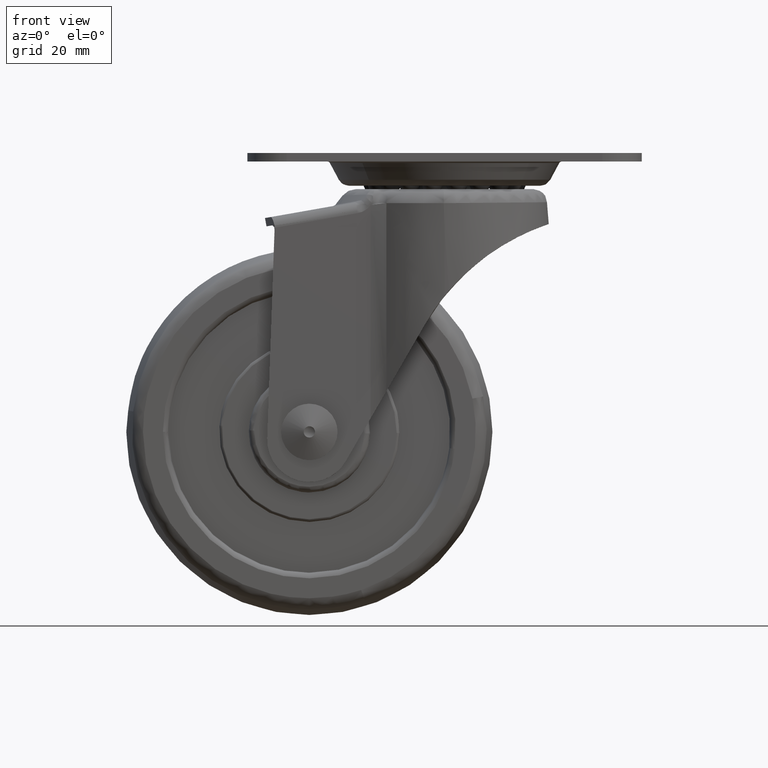
[diagram: clean part render]
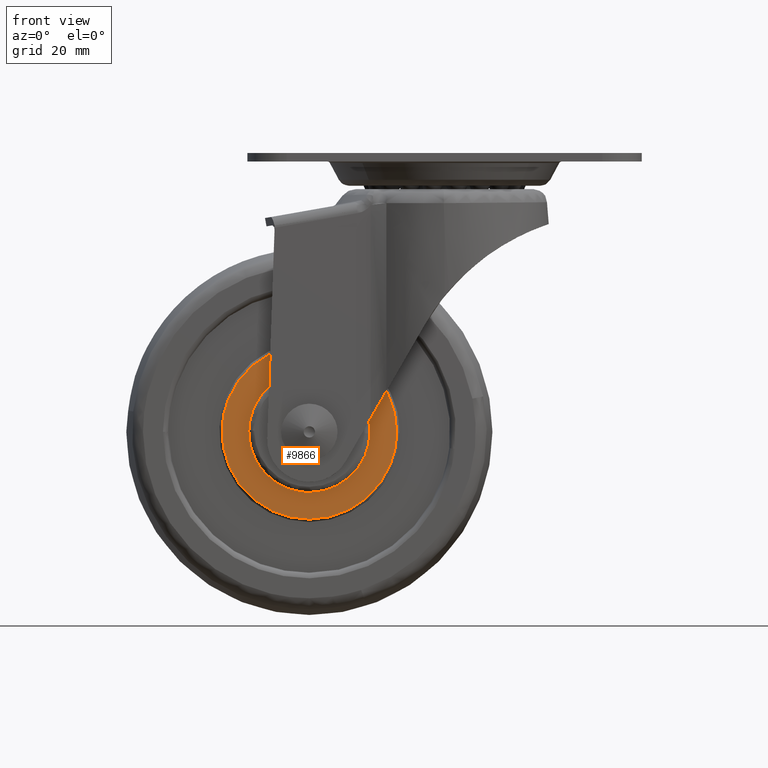
[diagram: same view with one face highlighted and labeled with its STEP entity id]
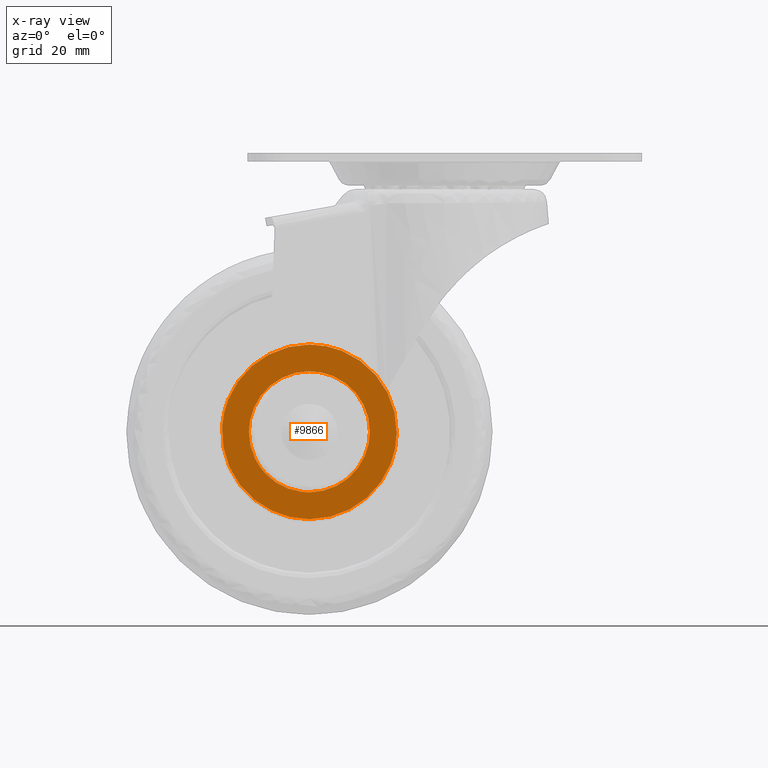
[diagram: x-ray of the same camera — body ghosted, the highlighted face saturated]
A machine part, front view. The second image highlights one B-rep face of the part: STEP entity #9866.
The next image is the same camera in x-ray: the body ghosted, the highlighted face saturated — about 0% of this face is hidden behind the body in this view.
In plain terms, the highlighted face is a freeform B-spline surface patch.
Its self-contained STEP definition (entity closure, byte-faithful):
#7401=CARTESIAN_POINT('',(-25.345687081091690,-9.999999999999425,-58.665436766699472));
#7402=VERTEX_POINT('',#7401);
#7403=CARTESIAN_POINT('',(-24.0,-9.999999999999409,-58.749996000000003));
#7404=VERTEX_POINT('',#7403);
#7405=CARTESIAN_POINT('',(-25.345687081091690,-9.999999999999425,-58.665436766699472));
#7406=CARTESIAN_POINT('',(-24.899483530294209,-9.999999999999435,-58.721743462729847));
#7407=CARTESIAN_POINT('',(-24.449742178409920,-9.999999999999417,-58.750006549291790));
#7408=CARTESIAN_POINT('',(-24.0,-9.999999999999409,-58.749996000000003));
#7409=B_SPLINE_CURVE_WITH_KNOTS('',3,(#7405,#7406,#7407,#7408),.UNSPECIFIED.,.F.,.U.,(4,4),(4.932565E-010,1.349230059444168),.UNSPECIFIED.);
#7410=EDGE_CURVE('',#7402,#7404,#7409,.T.);
#7412=CARTESIAN_POINT('',(-13.250000000000060,-9.999999999999409,-47.999994871958528));
#7413=VERTEX_POINT('',#7412);
#7414=CARTESIAN_POINT('',(-24.0,-9.999999999999409,-58.749996000000003));
#7415=CARTESIAN_POINT('',(-23.076507079407151,-9.999999999999396,-58.750307643388453));
#7416=CARTESIAN_POINT('',(-21.581554787462849,-9.999999999999433,-58.556064335460469));
#7417=CARTESIAN_POINT('',(-19.666757926718059,-9.999999999999405,-57.884129902230093));
#7418=CARTESIAN_POINT('',(-18.111274967197240,-9.999999999999405,-57.052694367180862));
#7419=CARTESIAN_POINT('',(-16.467050905024909,-9.999999999999417,-55.785981214090008));
#7420=CARTESIAN_POINT('',(-15.012299183664510,-9.999999999999410,-54.056977035462559));
#7421=CARTESIAN_POINT('',(-14.076347181420489,-9.999999999999426,-52.252713030261532));
#7422=CARTESIAN_POINT('',(-13.426811120237099,-9.999999999999353,-50.286508496941153));
#7423=CARTESIAN_POINT('',(-13.249708807168370,-9.999999999999456,-48.923489518826749));
#7424=CARTESIAN_POINT('',(-13.250000000000060,-9.999999999999409,-47.999994871958528));
#7425=B_SPLINE_CURVE_WITH_KNOTS('',3,(#7414,#7415,#7416,#7417,#7418,#7419,#7420,#7421,#7422,#7423,#7424),.UNSPECIFIED.,.F.,.U.,(4,1,1,1,1,1,1,1,4),(0.000000076363438,2.770382093069330,4.485389254515685,6.068487298615514,8.047356925754984,10.685757396142920,12.796550307057780,14.115790204067570,16.886167101695889),.UNSPECIFIED.);
#7426=EDGE_CURVE('',#7404,#7413,#7425,.T.);
#7428=CARTESIAN_POINT('',(-24.0,-9.999999999999409,-37.249996000000010));
#7429=VERTEX_POINT('',#7428);
#7430=CARTESIAN_POINT('',(-13.250000000000060,-9.999999999999409,-47.999994871958528));
#7431=CARTESIAN_POINT('',(-13.249978437201131,-9.999999999999409,-47.472313172408377));
#7432=CARTESIAN_POINT('',(-13.331092179189280,-9.999999999999414,-46.372969825817641));
#7433=CARTESIAN_POINT('',(-13.738122916504279,-9.999999999999409,-44.610670861301799));
#7434=CARTESIAN_POINT('',(-14.399698788919020,-9.999999999999421,-43.067413948879697));
#7435=CARTESIAN_POINT('',(-15.426315229132690,-9.999999999999369,-41.423856576712303));
#7436=CARTESIAN_POINT('',(-16.607469596456099,-9.999999999999510,-40.104409292303153));
#7437=CARTESIAN_POINT('',(-18.046366702387179,-9.999999999999309,-39.009924649573470));
#7438=CARTESIAN_POINT('',(-19.656273332653889,-9.999999999999583,-38.097588401541280));
#7439=CARTESIAN_POINT('',(-21.625401265155411,-9.999999999999481,-37.420296398489043));
#7440=CARTESIAN_POINT('',(-23.252447106151848,-9.999999999999275,-37.249911212838953));
#7441=CARTESIAN_POINT('',(-24.0,-9.999999999999409,-37.249996000000010));
#7442=B_SPLINE_CURVE_WITH_KNOTS('',3,(#7430,#7431,#7432,#7433,#7434,#7435,#7436,#7437,#7438,#7439,#7440,#7441),.UNSPECIFIED.,.F.,.U.,(4,1,1,1,1,1,1,1,1,4),(0.000000076739425,1.583052907055929,3.298068967626113,5.408851894724187,6.596180970129247,9.102656617720669,10.685756591826861,12.005002068928260,14.643492190751960,16.886165830122369),.UNSPECIFIED.);
#7443=EDGE_CURVE('',#7413,#7429,#7442,.T.);
#7445=CARTESIAN_POINT('',(-34.749999999999943,-9.999999999999409,-47.999997128041642));
#7446=VERTEX_POINT('',#7445);
#7447=CARTESIAN_POINT('',(-24.0,-9.999999999999409,-37.249996000000010));
#7448=CARTESIAN_POINT('',(-24.527676931425500,-9.999999999999410,-37.249989778929788));
#7449=CARTESIAN_POINT('',(-25.802948525171232,-9.999999999999423,-37.343982997047917));
#7450=CARTESIAN_POINT('',(-27.558632467611648,-9.999999999999403,-37.795215598932820));
#7451=CARTESIAN_POINT('',(-29.202256721171889,-9.999999999999416,-38.548153228392742));
#7452=CARTESIAN_POINT('',(-30.532805176657760,-9.999999999999410,-39.413782090673060));
#7453=CARTESIAN_POINT('',(-31.920241382817508,-9.999999999999414,-40.640444010322398));
#7454=CARTESIAN_POINT('',(-33.117907094800152,-9.999999999999407,-42.175076159777902));
#7455=CARTESIAN_POINT('',(-33.951250322820272,-9.999999999999366,-43.830963904509382));
#7456=CARTESIAN_POINT('',(-34.573214360745112,-9.999999999999577,-45.713473018839423));
#7457=CARTESIAN_POINT('',(-34.750280592266812,-9.999999999999204,-47.076506491278323));
#7458=CARTESIAN_POINT('',(-34.749999999999943,-9.999999999999409,-47.999997128041642));
#7459=B_SPLINE_CURVE_WITH_KNOTS('',3,(#7447,#7448,#7449,#7450,#7451,#7452,#7453,#7454,#7455,#7456,#7457,#7458),.UNSPECIFIED.,.F.,.U.,(4,1,1,1,1,1,1,1,1,4),(0.000000076386144,1.583053026046011,3.825768816669708,5.408852301568549,6.991961150350985,8.574985377165913,10.949601800449820,12.796550307062180,14.115790204070921,16.886167101695872),.UNSPECIFIED.);
#7460=EDGE_CURVE('',#7429,#7446,#7459,.T.);
#7462=CARTESIAN_POINT('',(-31.797774659480151,-9.999999999999417,-55.399807917534353));
#7463=VERTEX_POINT('',#7462);
#7464=CARTESIAN_POINT('',(-34.749999999999943,-9.999999999999409,-47.999997128041642));
#7465=CARTESIAN_POINT('',(-34.750097170826741,-9.999999999999417,-48.722645526097487));
#7466=CARTESIAN_POINT('',(-34.625198331571077,-9.999999999999417,-49.955347199200887));
#7467=CARTESIAN_POINT('',(-34.085541816589632,-9.999999999999407,-51.884257252892652));
#7468=CARTESIAN_POINT('',(-33.210129914325023,-9.999999999999439,-53.692811459734230));
#7469=CARTESIAN_POINT('',(-32.295267601916990,-9.999999999999368,-54.875674881467063));
#7470=CARTESIAN_POINT('',(-31.797774659480151,-9.999999999999417,-55.399807917534353));
#7471=B_SPLINE_CURVE_WITH_KNOTS('',3,(#7464,#7465,#7466,#7467,#7468,#7469,#7470),.UNSPECIFIED.,.F.,.U.,(4,1,1,1,4),(0.000000021724915,2.167937988898442,3.698264158702001,5.993704832738564,8.161642795230979),.UNSPECIFIED.);
#7472=EDGE_CURVE('',#7446,#7463,#7471,.T.);
#7574=CARTESIAN_POINT('',(-31.797774659480151,-9.999999999999417,-55.399807917534353));
#7575=CARTESIAN_POINT('',(-31.163331481438409,-9.999999999999423,-56.068714699672618));
#7576=CARTESIAN_POINT('',(-29.841155240644529,-9.999999999999428,-57.143877735129102));
#7577=CARTESIAN_POINT('',(-27.611573298680948,-9.999999999999417,-58.212856827617813));
#7578=CARTESIAN_POINT('',(-26.107920692220372,-9.999999999999455,-58.569372975020833));
#7579=CARTESIAN_POINT('',(-25.345687081091690,-9.999999999999425,-58.665436766699472));
#7580=B_SPLINE_CURVE_WITH_KNOTS('',3,(#7574,#7575,#7576,#7577,#7578,#7579),.UNSPECIFIED.,.F.,.U.,(4,1,1,4),(0.000000022254466,2.765728042767478,5.070500284729574,7.375273367297040),.UNSPECIFIED.);
#7581=EDGE_CURVE('',#7463,#7402,#7580,.T.);
#8199=CARTESIAN_POINT('',(-39.462267991132109,-9.999999999999346,-46.919130596555163));
#8200=VERTEX_POINT('',#8199);
#8201=CARTESIAN_POINT('',(-24.0,-9.999999999999350,-63.499996000000003));
#8202=VERTEX_POINT('',#8201);
#8203=CARTESIAN_POINT('',(-39.462267991132109,-9.999999999999346,-46.919130596555163));
#8204=CARTESIAN_POINT('',(-39.510771219180143,-9.999999999999352,-47.612752791936288));
#8205=CARTESIAN_POINT('',(-39.514689903918288,-9.999999999999339,-49.172491612812713));
#8206=CARTESIAN_POINT('',(-39.200906393823793,-9.999999999999353,-51.275651007328477));
#8207=CARTESIAN_POINT('',(-38.565009528451270,-9.999999999999348,-53.439041300771592));
#8208=CARTESIAN_POINT('',(-37.765042139955902,-9.999999999999353,-55.228147570551222));
#8209=CARTESIAN_POINT('',(-36.664104429903681,-9.999999999999398,-57.003614702875161));
#8210=CARTESIAN_POINT('',(-35.541753720014327,-9.999999999999192,-58.400624711562592));
#8211=CARTESIAN_POINT('',(-34.097522627406107,-9.999999999999409,-59.816369835596731));
#8212=CARTESIAN_POINT('',(-32.296125658398552,-9.999999999999320,-61.178115960227359));
#8213=CARTESIAN_POINT('',(-29.908440397225771,-9.999999999999254,-62.423192807881577));
#8214=CARTESIAN_POINT('',(-27.079235520027979,-9.999999999999458,-63.292066909258452));
#8215=CARTESIAN_POINT('',(-25.059550327152198,-9.999999999999320,-63.500159308333721));
#8216=CARTESIAN_POINT('',(-24.0,-9.999999999999350,-63.499996000000003));
#8217=B_SPLINE_CURVE_WITH_KNOTS('',3,(#8203,#8204,#8205,#8206,#8207,#8208,#8209,#8210,#8211,#8212,#8213,#8214,#8215,#8216),.UNSPECIFIED.,.F.,.U.,(4,1,1,1,1,1,1,1,1,1,1,4),(0.000000092992526,2.085955917955531,4.668626825926197,6.357283434883541,8.840617254100547,10.529268201373389,12.615283982888011,14.204521881646700,16.588520429090721,19.369846203097861,22.250516868685139,25.429129907070891),.UNSPECIFIED.);
#8218=EDGE_CURVE('',#8200,#8202,#8217,.T.);
#8267=CARTESIAN_POINT('',(-8.501223786436007,-9.999999999999350,-48.194769619000013));
#8268=VERTEX_POINT('',#8267);
#8278=CARTESIAN_POINT('',(-24.0,-9.999999999999350,-63.499996000000003));
#8279=CARTESIAN_POINT('',(-22.930734648478960,-9.999999999999346,-63.500175937567583));
#8280=CARTESIAN_POINT('',(-21.389829908044149,-9.999999999999362,-63.339872816542950));
#8281=CARTESIAN_POINT('',(-19.042664887305211,-9.999999999999373,-62.734046539741932));
#8282=CARTESIAN_POINT('',(-17.227890208317032,-9.999999999999343,-62.001886594401377));
#8283=CARTESIAN_POINT('',(-15.294204485009111,-9.999999999999394,-60.877918095457737));
#8284=CARTESIAN_POINT('',(-13.521962831651500,-9.999999999999290,-59.509926815778151));
#8285=CARTESIAN_POINT('',(-11.683028649418670,-9.999999999999409,-57.556458325751422));
#8286=CARTESIAN_POINT('',(-10.234350224925290,-9.999999999999410,-55.293859202061029));
#8287=CARTESIAN_POINT('',(-9.370827103806326,-9.999999999999297,-53.228256885239247));
#8288=CARTESIAN_POINT('',(-8.717475376668819,-9.999999999999636,-50.959664384664201));
#8289=CARTESIAN_POINT('',(-8.515589335060305,-9.999999999998622,-49.358307797325573));
#8290=CARTESIAN_POINT('',(-8.501223786436007,-9.999999999999350,-48.194769619000013));
#8291=B_SPLINE_CURVE_WITH_KNOTS('',3,(#8278,#8279,#8280,#8281,#8282,#8283,#8284,#8285,#8286,#8287,#8288,#8289,#8290),.UNSPECIFIED.,.F.,.U.,(4,1,1,1,1,1,1,1,1,1,4),(0.000000082020389,3.207747775022014,4.622952125097463,7.264652594520676,9.057253064870126,11.321556987517059,13.963191126610480,17.076643299175590,19.340951692642371,20.661802222366479,24.152601618442539),.UNSPECIFIED.);
#8292=EDGE_CURVE('',#8202,#8268,#8291,.T.);
#8320=CARTESIAN_POINT('',(-24.0,-9.999999999999350,-32.499996000000003));
#8321=VERTEX_POINT('',#8320);
#8322=CARTESIAN_POINT('',(-24.0,-9.999999999999350,-32.499996000000003));
#8323=CARTESIAN_POINT('',(-25.332970299254288,-9.999999999999339,-32.499578694115321));
#8324=CARTESIAN_POINT('',(-27.392716131957911,-9.999999999999343,-32.767445356723563));
#8325=CARTESIAN_POINT('',(-30.037378906839230,-9.999999999999362,-33.668533949015249));
#8326=CARTESIAN_POINT('',(-32.096151326324751,-9.999999999999332,-34.711846614354663));
#8327=CARTESIAN_POINT('',(-33.776540682431822,-9.999999999999396,-35.915352236845443));
#8328=CARTESIAN_POINT('',(-35.284715432585472,-9.999999999999305,-37.321850532592940));
#8329=CARTESIAN_POINT('',(-36.777091951128583,-9.999999999999281,-39.082507867058041));
#8330=CARTESIAN_POINT('',(-38.125620101589789,-9.999999999999412,-41.399340243211583));
#8331=CARTESIAN_POINT('',(-39.097235414742613,-9.999999999999226,-44.150866229076577));
#8332=CARTESIAN_POINT('',(-39.394780476912821,-9.999999999999407,-45.952078527487409));
#8333=CARTESIAN_POINT('',(-39.462267991132109,-9.999999999999346,-46.919130596555163));
#8334=B_SPLINE_CURVE_WITH_KNOTS('',3,(#8322,#8323,#8324,#8325,#8326,#8327,#8328,#8329,#8330,#8331,#8332,#8333),.UNSPECIFIED.,.F.,.U.,(4,1,1,1,1,1,1,1,1,4),(0.000000012941975,3.998782130162333,6.179963453667746,8.361125869397654,10.905819504845860,12.359918072275590,14.541072464584269,17.812830258845850,20.357527149113690,23.265733070899081),.UNSPECIFIED.);
#8335=EDGE_CURVE('',#8321,#8200,#8334,.T.);
#8337=CARTESIAN_POINT('',(-8.501223786436007,-9.999999999999350,-48.194769619000013));
#8338=CARTESIAN_POINT('',(-8.489904836002587,-9.999999999999339,-47.300081787798192));
#8339=CARTESIAN_POINT('',(-8.615739587717201,-9.999999999999384,-45.604731390427943));
#8340=CARTESIAN_POINT('',(-9.174751649793397,-9.999999999999382,-43.299736929355603));
#8341=CARTESIAN_POINT('',(-9.947210975287709,-9.999999999999263,-41.366837838566639));
#8342=CARTESIAN_POINT('',(-10.951856878117971,-9.999999999999499,-39.544715692537338));
#8343=CARTESIAN_POINT('',(-12.502023196837850,-9.999999999999281,-37.462108616076328));
#8344=CARTESIAN_POINT('',(-14.498855648447220,-9.999999999999504,-35.642022689438960));
#8345=CARTESIAN_POINT('',(-16.511417997457581,-9.999999999999114,-34.389976058245900));
#8346=CARTESIAN_POINT('',(-18.535255631747809,-9.999999999999419,-33.431468628256930));
#8347=CARTESIAN_POINT('',(-20.964211434540939,-9.999999999999393,-32.696687996116687));
#8348=CARTESIAN_POINT('',(-23.009368575137788,-9.999999999999231,-32.499887153210757));
#8349=CARTESIAN_POINT('',(-24.0,-9.999999999999350,-32.499996000000003));
#8350=B_SPLINE_CURVE_WITH_KNOTS('',3,(#8337,#8338,#8339,#8340,#8341,#8342,#8343,#8344,#8345,#8346,#8347,#8348,#8349),.UNSPECIFIED.,.F.,.U.,(4,1,1,1,1,1,1,1,1,1,4),(0.000000085876795,2.684268309998565,5.080986817714805,7.094218944628224,8.915726541035861,11.312438879714010,14.859500917873010,16.968591203725449,18.406620720900548,21.570273335163971,24.542160935700430),.UNSPECIFIED.);
#8351=EDGE_CURVE('',#8268,#8321,#8350,.T.);
#9847=CARTESIAN_POINT('',(-41.046534394808120,-9.999999999999380,-65.048446230921812));
#9848=CARTESIAN_POINT('',(-41.046534394808120,-9.999999999999380,-30.951545214755001));
#9849=CARTESIAN_POINT('',(-6.952922364692980,-9.999999999999380,-65.048446230921812));
#9850=CARTESIAN_POINT('',(-6.952922364692980,-9.999999999999380,-30.951545214755001));
#9851=B_SPLINE_SURFACE_WITH_KNOTS('',1,1,((#9847,#9849),(#9848,#9850)),.UNSPECIFIED.,.F.,.F.,.U.,(2,2),(2,2),(0.0,34.096901016166811),(0.0,34.093612030115139),.UNSPECIFIED.);
#9852=ORIENTED_EDGE('',*,*,#8292,.T.);
#9853=ORIENTED_EDGE('',*,*,#8351,.T.);
#9854=ORIENTED_EDGE('',*,*,#8335,.T.);
#9855=ORIENTED_EDGE('',*,*,#8218,.T.);
#9856=EDGE_LOOP('',(#9852,#9853,#9854,#9855));
#9857=FACE_OUTER_BOUND('',#9856,.T.);
#9858=ORIENTED_EDGE('',*,*,#7426,.F.);
#9859=ORIENTED_EDGE('',*,*,#7410,.F.);
#9860=ORIENTED_EDGE('',*,*,#7581,.F.);
#9861=ORIENTED_EDGE('',*,*,#7472,.F.);
#9862=ORIENTED_EDGE('',*,*,#7460,.F.);
#9863=ORIENTED_EDGE('',*,*,#7443,.F.);
#9864=EDGE_LOOP('',(#9858,#9859,#9860,#9861,#9862,#9863));
#9865=FACE_BOUND('',#9864,.T.);
#9866=ADVANCED_FACE('',(#9857,#9865),#9851,.F.);